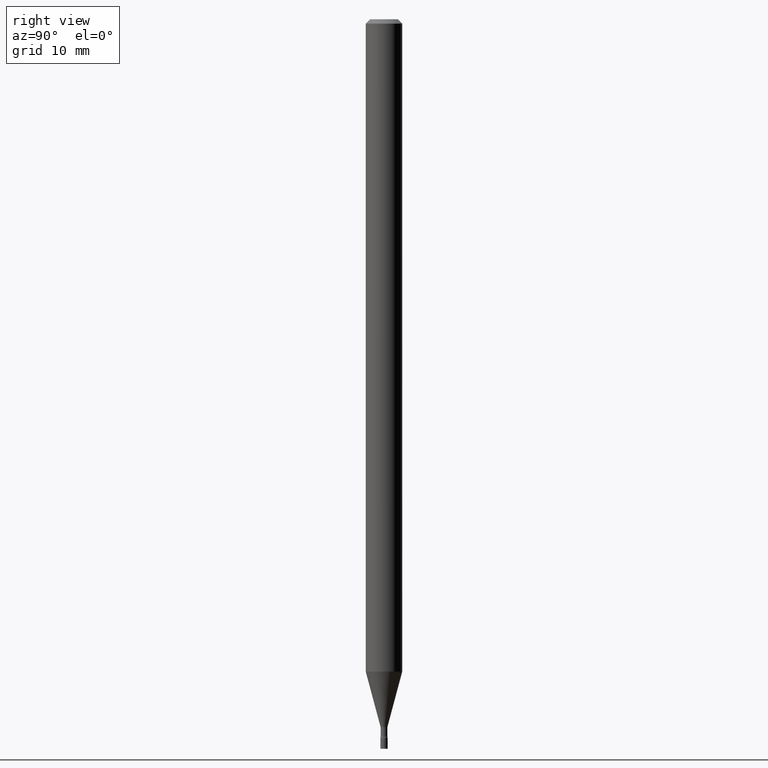
[diagram: clean part render]
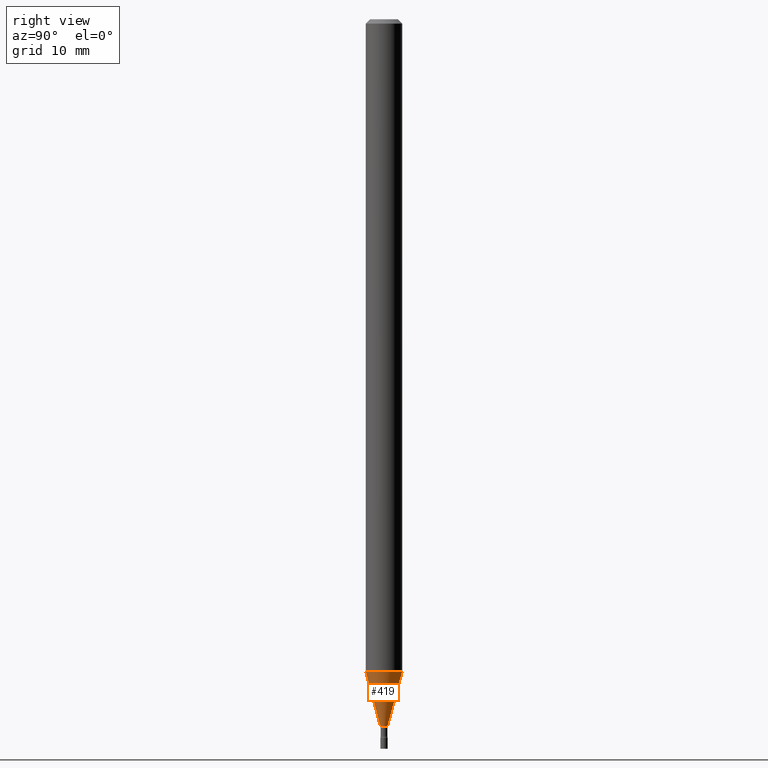
[diagram: same view with one face highlighted and labeled with its STEP entity id]
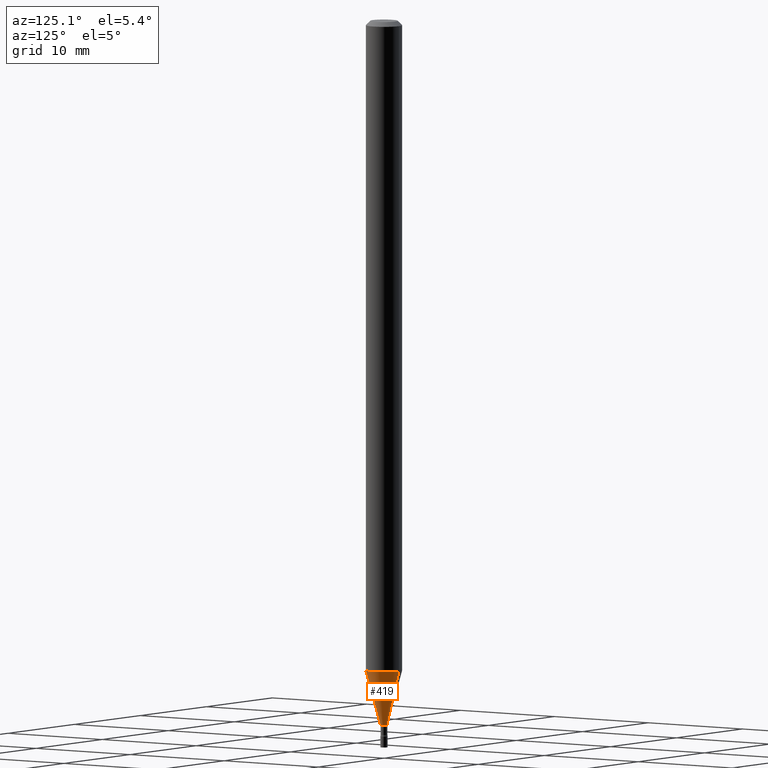
[diagram: same view with one face highlighted and labeled with its STEP entity id]
A machine part, right view. The second image highlights one B-rep face of the part: STEP entity #419.
A second angle (auxiliary view) of the same face is appended — the face is thin or edge-on in the first view.
In plain terms, the highlighted conical surface has half-angle 15 deg.
Its self-contained STEP definition (entity closure, byte-faithful):
#8 = EDGE_CURVE ( 'NONE', #471, #378, #27, .T. ) ;
#10 = CARTESIAN_POINT ( 'NONE',  ( 8.712044494297056292E-17, 0.01226111260565551468, -2.423092501787273534 ) ) ;
#27 = LINE ( 'NONE', #425, #322 ) ;
#34 = DIRECTION ( 'NONE',  ( 1.839019923739597949E-15, 0.2588190451025246253, 0.9659258262890670910 ) ) ;
#39 = VECTOR ( 'NONE', #34, 39.37007874015748854 ) ;
#54 = AXIS2_PLACEMENT_3D ( 'NONE', #366, #247, #515 ) ;
#63 = ORIENTED_EDGE ( 'NONE', *, *, #308, .T. ) ;
#66 = DIRECTION ( 'NONE',  ( -1.807323732225328167E-15, -0.2588190451025179084, 0.9659258262890690894 ) ) ;
#135 = LINE ( 'NONE', #10, #39 ) ;
#143 = ORIENTED_EDGE ( 'NONE', *, *, #248, .F. ) ;
#157 = CARTESIAN_POINT ( 'NONE',  ( 5.467210821039463204E-29, -7.805371709707060200E-15, -2.235598421515879952 ) ) ;
#162 = DIRECTION ( 'NONE',  ( -6.982962677686265922E-15, -1.000000000000000000, 0.000000000000000000 ) ) ;
#173 = VERTEX_POINT ( 'NONE', #317 ) ;
#213 = FACE_OUTER_BOUND ( 'NONE', #481, .T. ) ;
#247 = DIRECTION ( 'NONE',  ( -2.445524548783828743E-29, 3.491401512269146579E-15, 1.000000000000000000 ) ) ;
#248 = EDGE_CURVE ( 'NONE', #378, #342, #309, .T. ) ;
#257 = CIRCLE ( 'NONE', #510, 0.01226111260566397493 ) ;
#267 = ORIENTED_EDGE ( 'NONE', *, *, #8, .F. ) ;
#271 = EDGE_CURVE ( 'NONE', #173, #342, #135, .T. ) ;
#308 = EDGE_CURVE ( 'NONE', #471, #173, #257, .T. ) ;
#309 = CIRCLE ( 'NONE', #446, 0.06250000000000000000 ) ;
#317 = CARTESIAN_POINT ( 'NONE',  ( 2.656048273965440826E-16, 0.01226111260565551642, -2.423092501787273534 ) ) ;
#322 = VECTOR ( 'NONE', #66, 39.37007874015748143 ) ;
#328 = DIRECTION ( 'NONE',  ( -2.445524548783828743E-29, 3.491401512269146579E-15, 1.000000000000000000 ) ) ;
#342 = VERTEX_POINT ( 'NONE', #362 ) ;
#362 = CARTESIAN_POINT ( 'NONE',  ( 4.440892098501171462E-16, 0.06249999999999219374, -2.235598421515880396 ) ) ;
#366 = CARTESIAN_POINT ( 'NONE',  ( 5.925732197094799718E-29, -8.459988825108115607E-15, -2.423092501787273534 ) ) ;
#368 = CARTESIAN_POINT ( 'NONE',  ( 5.925732197094799718E-29, -8.459988825108115607E-15, -2.423092501787273534 ) ) ;
#378 = VERTEX_POINT ( 'NONE', #434 ) ;
#419 = ADVANCED_FACE ( 'NONE', ( #213 ), #454, .T. ) ;
#424 = CARTESIAN_POINT ( 'NONE',  ( -8.561889171220087802E-17, -0.01226111260567243517, -2.423092501787273534 ) ) ;
#425 = CARTESIAN_POINT ( 'NONE',  ( -8.561889171220087802E-17, -0.01226111260567243517, -2.423092501787273534 ) ) ;
#434 = CARTESIAN_POINT ( 'NONE',  ( -4.364351673553370408E-16, -0.06250000000000781319, -2.235598421515879952 ) ) ;
#439 = DIRECTION ( 'NONE',  ( -6.982962677686265922E-15, -1.000000000000000000, 4.370956789862821150E-15 ) ) ;
#446 = AXIS2_PLACEMENT_3D ( 'NONE', #157, #328, #439 ) ;
#454 = CONICAL_SURFACE ( 'NONE', #54, 0.01226111260566397493, 0.2617993877991499629 ) ;
#471 = VERTEX_POINT ( 'NONE', #424 ) ;
#481 = EDGE_LOOP ( 'NONE', ( #63, #486, #143, #267 ) ) ;
#486 = ORIENTED_EDGE ( 'NONE', *, *, #271, .T. ) ;
#510 = AXIS2_PLACEMENT_3D ( 'NONE', #368, #516, #162 ) ;
#515 = DIRECTION ( 'NONE',  ( -6.982962677686265922E-15, -1.000000000000000000, 0.000000000000000000 ) ) ;
#516 = DIRECTION ( 'NONE',  ( -2.445524548783828743E-29, 3.491401512269146579E-15, 1.000000000000000000 ) ) ;